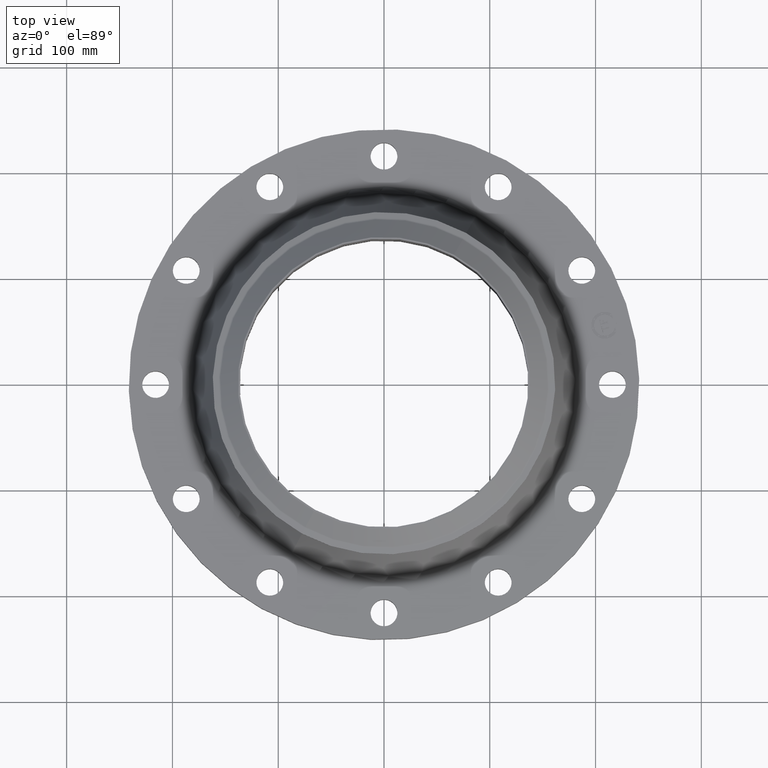
[diagram: clean part render]
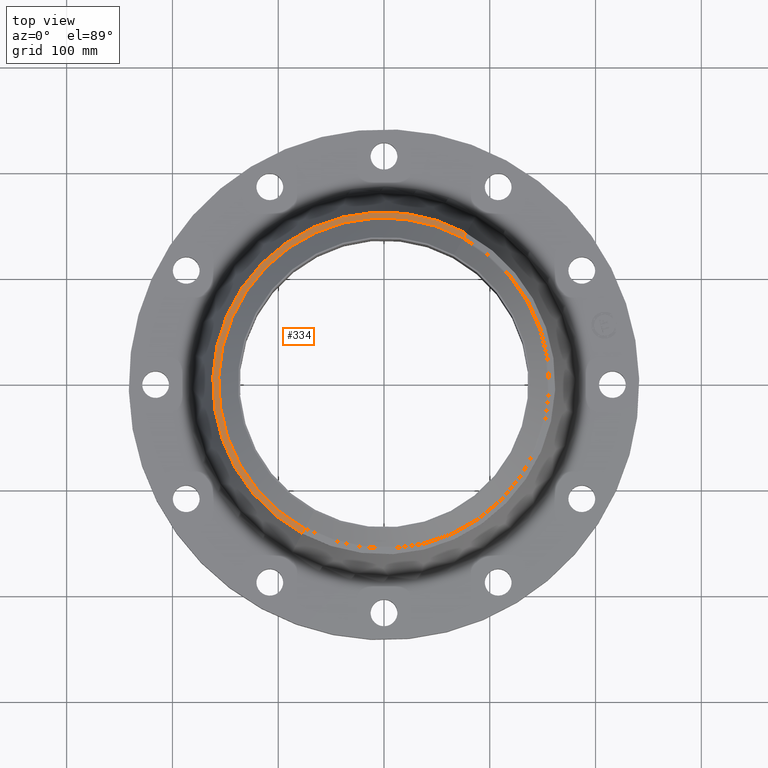
[diagram: same view with one face highlighted and labeled with its STEP entity id]
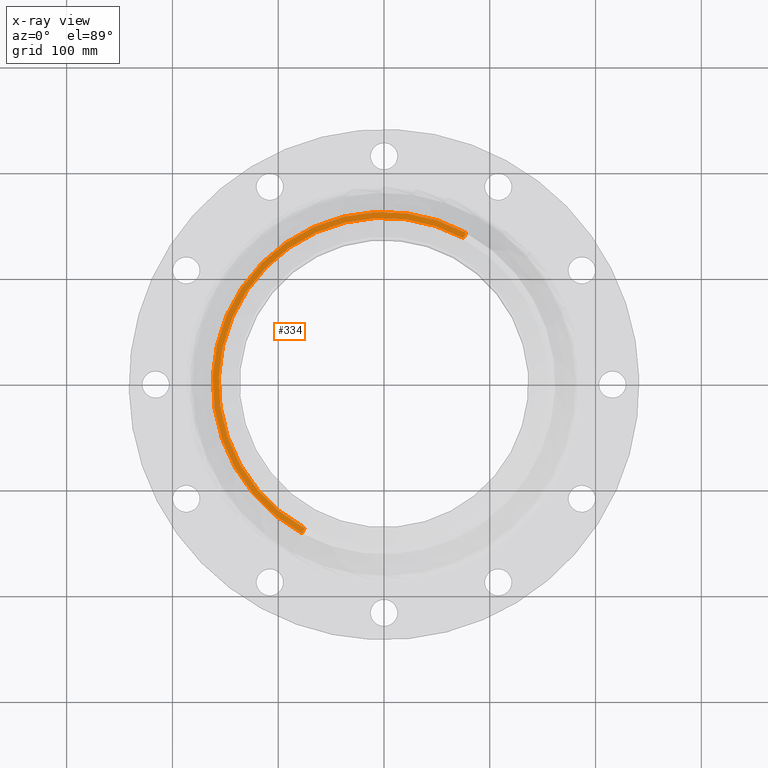
[diagram: x-ray of the same camera — body ghosted, the highlighted face saturated]
A machine part, top view. The second image highlights one B-rep face of the part: STEP entity #334.
The next image is the same camera in x-ray: the body ghosted, the highlighted face saturated — about 0% of this face is hidden behind the body in this view.
In plain terms, the highlighted conical surface has half-angle 80 deg.
Its self-contained STEP definition (entity closure, byte-faithful):
#282=AXIS2_PLACEMENT_3D('Circle Axis2P3D',#280,#281,$) ;
#295=AXIS2_PLACEMENT_3D('Cone Axis2P3D',#292,#293,#294) ;
#325=AXIS2_PLACEMENT_3D('Circle Axis2P3D',#323,#324,$) ;
#258=CARTESIAN_POINT('Vertex',(-3.05633780861,-5.59458883207,3.9283809506)) ;
#265=CARTESIAN_POINT('Vertex',(3.05633780861,5.59458883207,3.9283809506)) ;
#280=CARTESIAN_POINT('Axis2P3D Location',(0.,0.,3.9283809506)) ;
#292=CARTESIAN_POINT('Axis2P3D Location',(0.,0.,3.96715126594)) ;
#297=CARTESIAN_POINT('Line Origine',(3.00363039187,5.49810855288,3.94776610827)) ;
#301=CARTESIAN_POINT('Vertex',(2.95092297513,5.40162827369,3.96715126594)) ;
#308=CARTESIAN_POINT('Vertex',(-2.95092297513,-5.40162827369,3.96715126594)) ;
#311=CARTESIAN_POINT('Line Origine',(-3.00363039187,-5.49810855288,3.94776610827)) ;
#323=CARTESIAN_POINT('Axis2P3D Location',(0.,0.,3.96715126594)) ;
#281=DIRECTION('Axis2P3D Direction',(0.,0.,-0.0393700787402)) ;
#293=DIRECTION('Axis2P3D Direction',(-0.,-0.,-0.0393700787402)) ;
#294=DIRECTION('Axis2P3D XDirection',(-0.0188750212049,-0.0345504945626,0.)) ;
#298=DIRECTION('Vector Direction',(0.0185882672208,0.0340255949157,-0.00683654242783)) ;
#312=DIRECTION('Vector Direction',(-0.0185882672208,-0.0340255949157,-0.00683654242783)) ;
#324=DIRECTION('Axis2P3D Direction',(0.,-0.,-0.0393700787402)) ;
#299=VECTOR('Line Direction',#298,0.0393700787402) ;
#313=VECTOR('Line Direction',#312,0.0393700787402) ;
#329=ORIENTED_EDGE('',*,*,#315,.F.) ;
#330=ORIENTED_EDGE('',*,*,#327,.T.) ;
#331=ORIENTED_EDGE('',*,*,#303,.T.) ;
#332=ORIENTED_EDGE('',*,*,#284,.F.) ;
#334=ADVANCED_FACE('PartBody',(#333),#296,.T.) ;
#283=CIRCLE('generated circle',#282,6.37500000003) ;
#326=CIRCLE('generated circle',#325,6.15512261553) ;
#296=CONICAL_SURFACE('Cone',#295,6.15512261553,1.3962634016) ;
#284=EDGE_CURVE('',#259,#266,#283,.T.) ;
#303=EDGE_CURVE('',#302,#266,#300,.T.) ;
#315=EDGE_CURVE('',#309,#259,#314,.T.) ;
#327=EDGE_CURVE('',#309,#302,#326,.T.) ;
#328=EDGE_LOOP('',(#329,#330,#331,#332)) ;
#333=FACE_OUTER_BOUND('',#328,.T.) ;
#300=LINE('Line',#297,#299) ;
#314=LINE('Line',#311,#313) ;
#259=VERTEX_POINT('',#258) ;
#266=VERTEX_POINT('',#265) ;
#302=VERTEX_POINT('',#301) ;
#309=VERTEX_POINT('',#308) ;